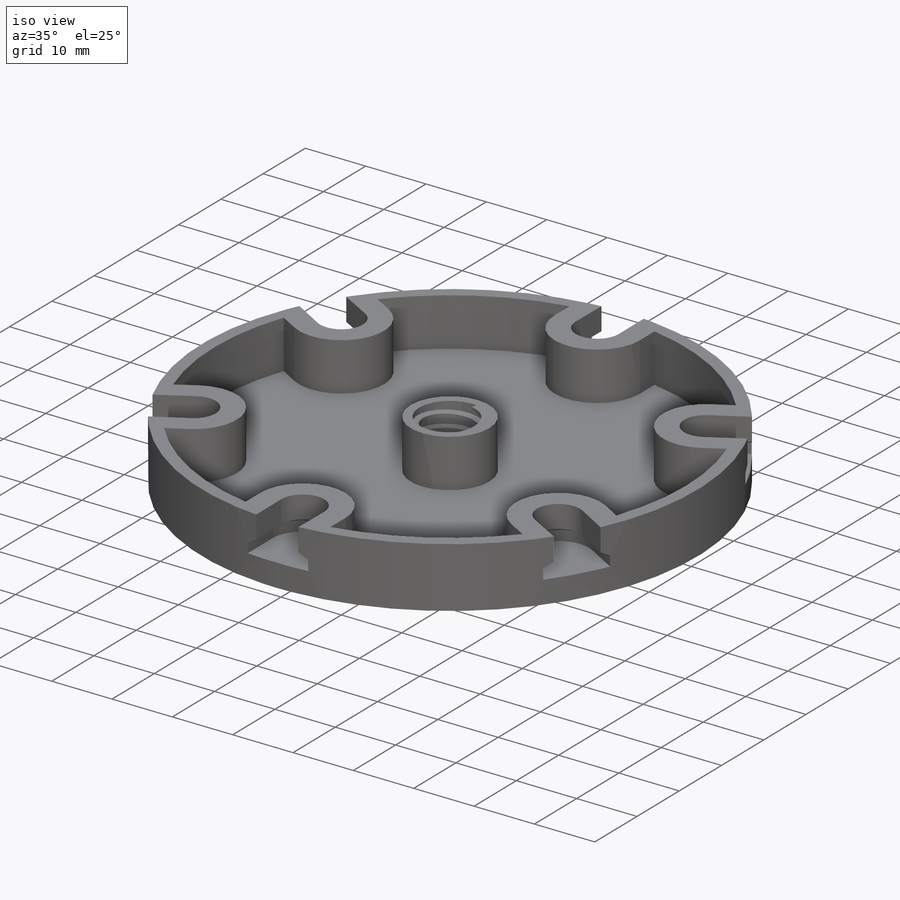
[diagram: iso view]
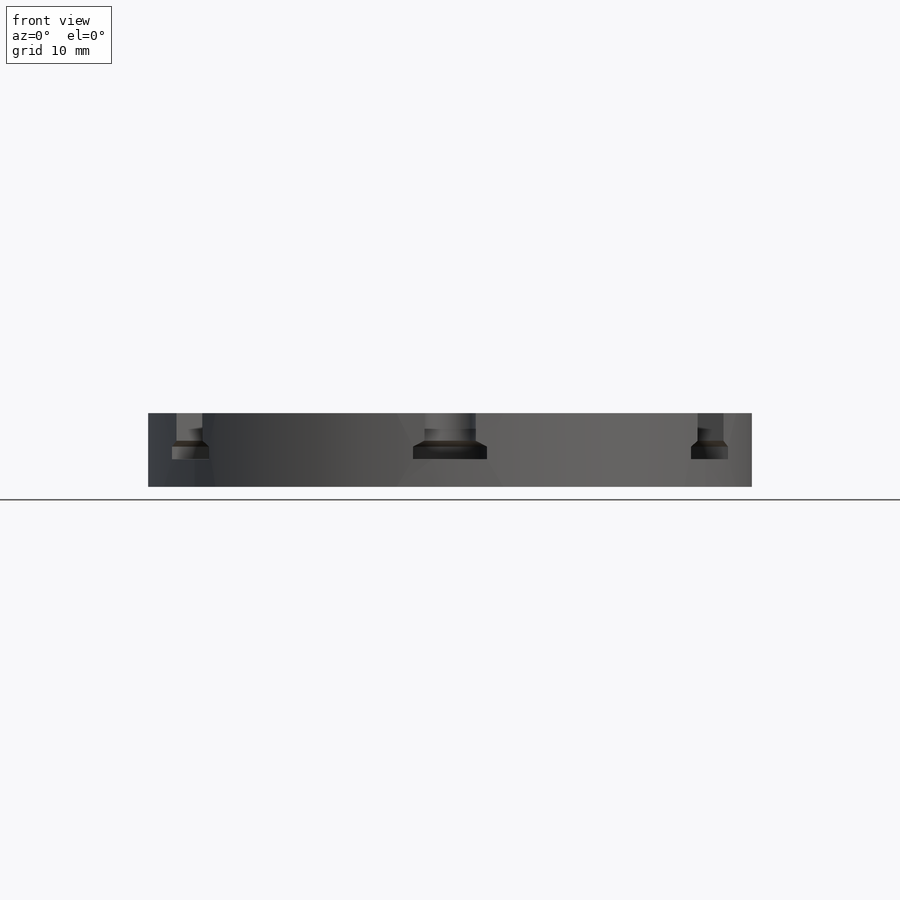
[diagram: front view]
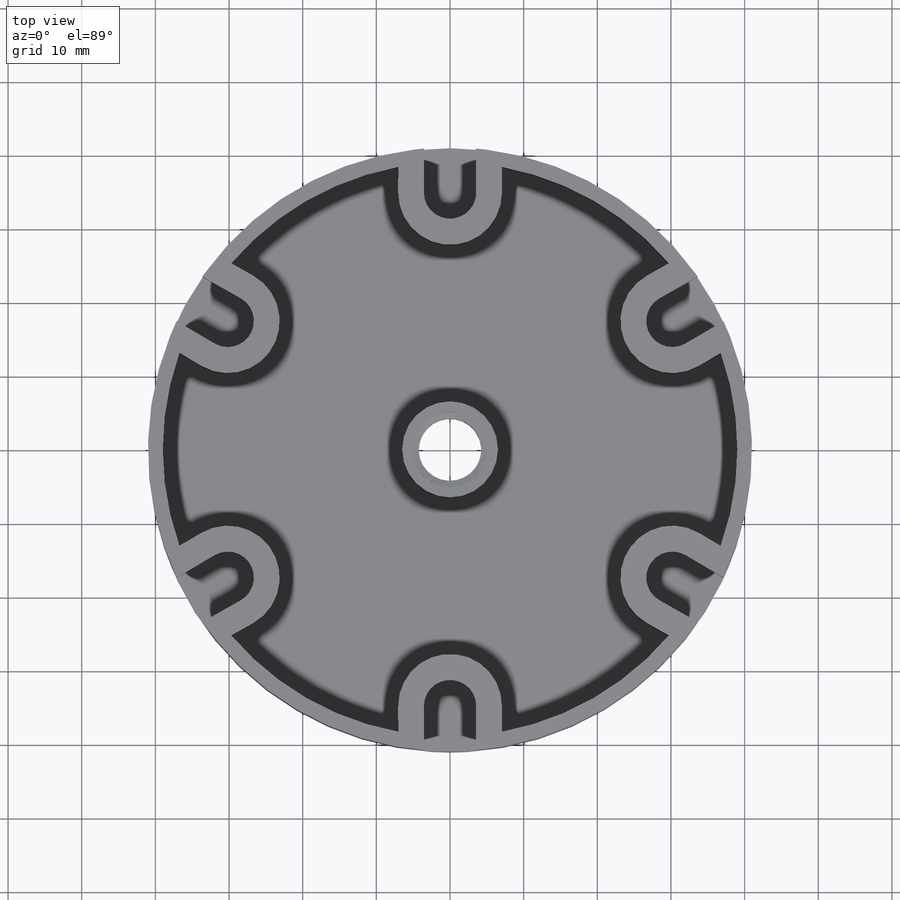
[diagram: top view]
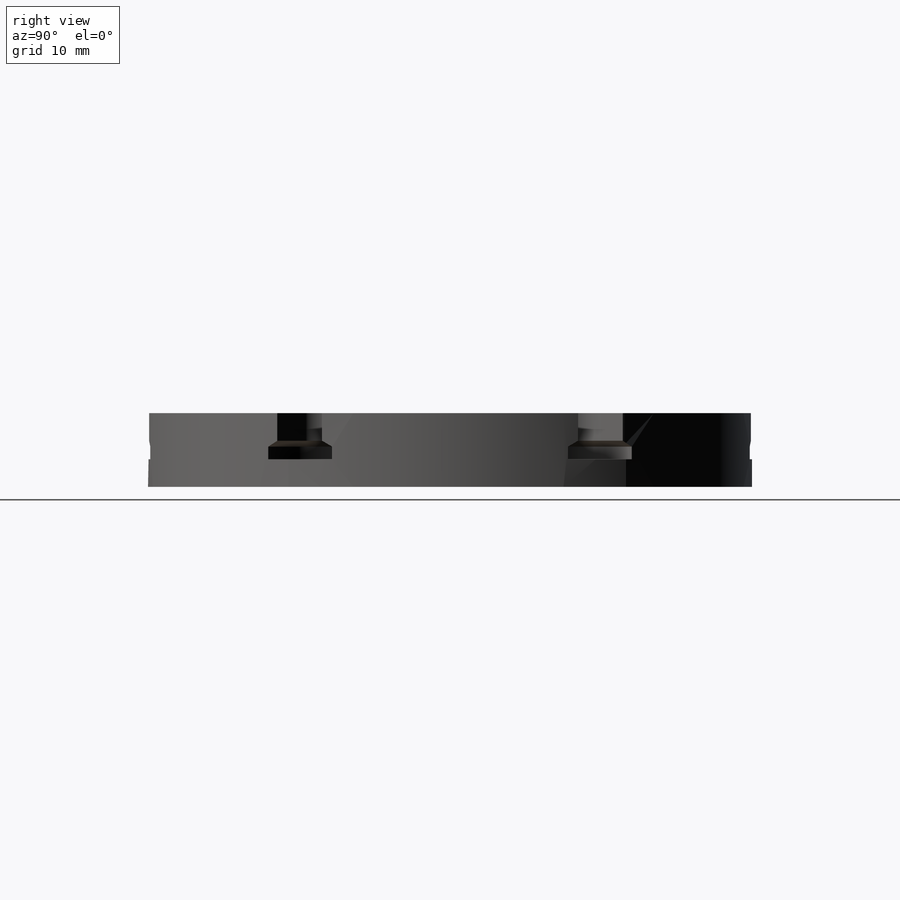
[diagram: right view]
SOLIDWORKS PART (.sldprt)
format: sldprt  version: not decoded by parser v0  size: 686,592 bytes
history: native  units: mm
features: sketch x14, cut_extrude x7, pattern_linear x5, extrude x2, sweep x2, plane x2, material x1, helix x1, pattern_circular x1, mirror x1 (+12 scaffold rows collapsed)
feature tree (48):
  scaffold x12  (default folders/planes/origin — collapsed)
  material  "Material <not specified>"
  sketch  "Sketch1"  dims[D1=82.0mm]
  extrude  "Boss-Extrude1"  Depth=10mm
  sketch  "Sketch2"  dims[D1=10.2mm]
  cut_extrude  "Cut-Extrude1"  [1 undecoded]
  sketch  "Sketch5"  dims[D1=10.2mm]
  helix  "Helix/Spiral2"  Pitch=10mm
  sketch  "Sketch8"  dims[c1.D1=0.85mm c1.D2=1.5mm c2.D2=29.0deg c2.D3=1.5mm c3.D3=75.5deg c3.D4=1.0mm c3.D5=~0.838072mm c4.D4=0.85mm]
  sweep  "Sweep1"
  sketch  "Sketch10"
  plane  "Plane1"
  plane  "Plane3"
  sketch  "Sketch17"
  sweep  "Cut-Sweep10"
  sketch  "Sketch19"  dims[D1=0.0mm]
  cut_extrude  "Cut-Extrude10"  Depth=2mm
  sketch  "Sketch27"  dims[D1=0.0mm D2=0.0mm]
  cut_extrude  "Cut-Extrude15"  Depth=6.25mm
  cut_extrude  "Cut-Extrude9"  [1 undecoded]
  sketch  "Sketch1<2>"  dims[D1=2.0mm]
  pattern_circular  "CirPattern2"  Count=6 Angle=60deg
  sketch  "Sketch28"  dims[c1.D1=82.0mm c1.D2=13.0mm c2.D1=0.0mm c2.D2=2.0mm c3.D1=6.0]
  cut_extrude  "Cut-Extrude16"  Depth=8mm
  sketch  "Sketch30"  dims[D1=3.0mm]
  cut_extrude  "Cut-Extrude18"  Depth=3mm
  sketch  "Sketch31"  dims[D1=~25.53314mm]
  pattern_linear  "LPattern1"  Count1=12 Count2=1 Spacing1=7mm Spacing2=50mm
  pattern_linear  "LPattern2"  Count1=6 Count2=1 Spacing1=7mm Spacing2=50mm
  pattern_linear  "LPattern3"  Count1=6 Count2=1 Spacing1=7mm Spacing2=50mm
  sketch  "Sketch34"  dims[c1.D1=3.0mm c1.D2=3.0mm c1.D3=3.0mm c1.D4=3.0mm c1.D5=3.0mm c2.D1=7.0mm c2.D3=7.0mm c2.D5=7.0mm]
  cut_extrude  "Cut-Extrude20"  Depth=2mm
  pattern_linear  "LPattern6"  Count1=2 Count2=1 Spacing1=7mm Spacing2=50mm
  pattern_linear  "LPattern7"  Count1=4 Count2=1 Spacing1=7mm Spacing2=50mm
  mirror  "Mirror2"
  sketch  "Sketch33"  dims[D1=2.0mm]
  extrude  "Boss-Extrude2"  Depth=3mm
decode coverage: 26 of 33 modeling features carry decoded parameters
note: ~ marks probable driven/reference dimensions
note: 2 parameter values undecoded
note: suppression state not decoded; provenance and decode notes live in map.json
